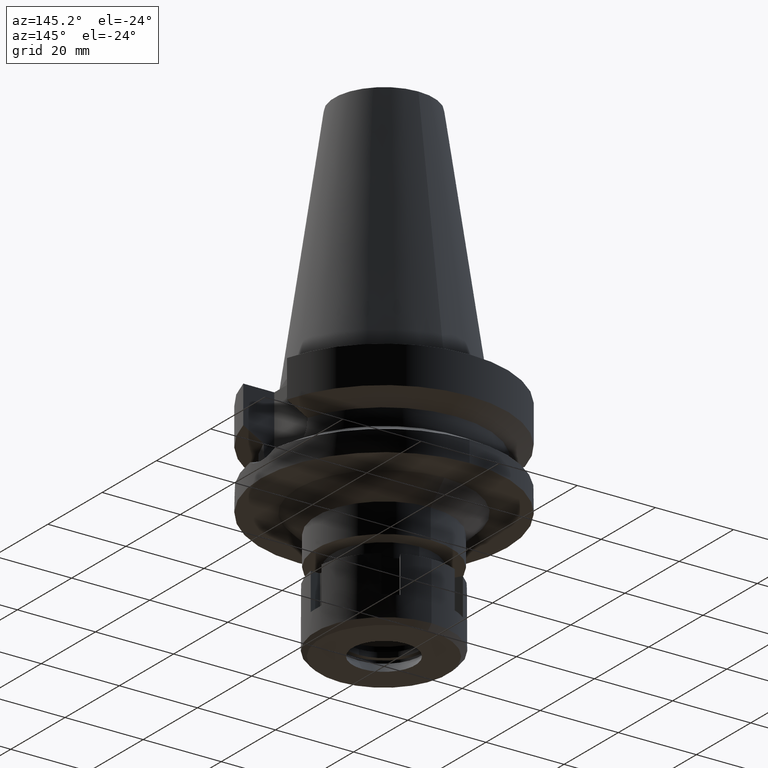
[diagram: clean part render]
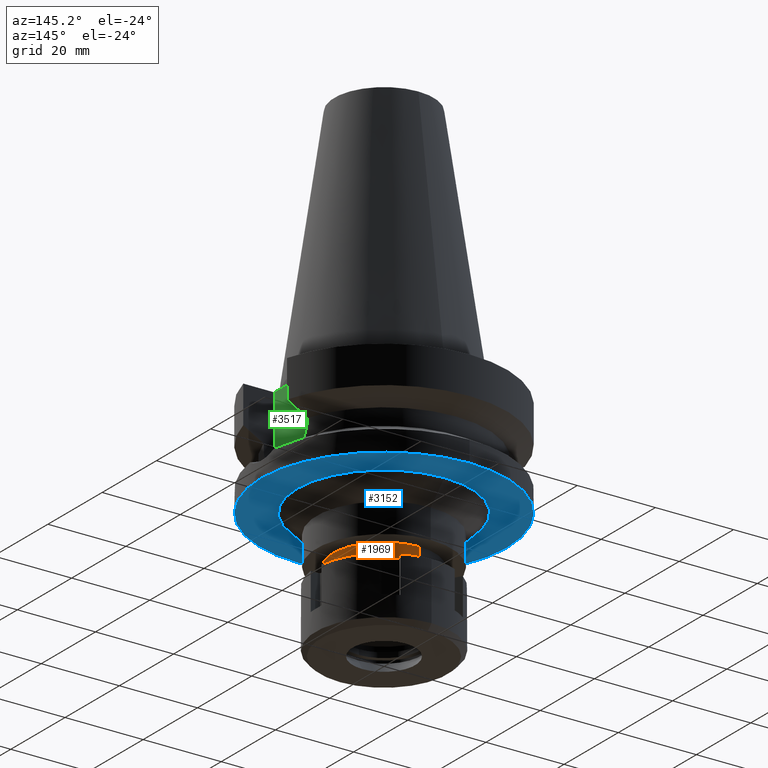
[diagram: same view with three faces highlighted in distinct colors, each labeled with its STEP entity id]
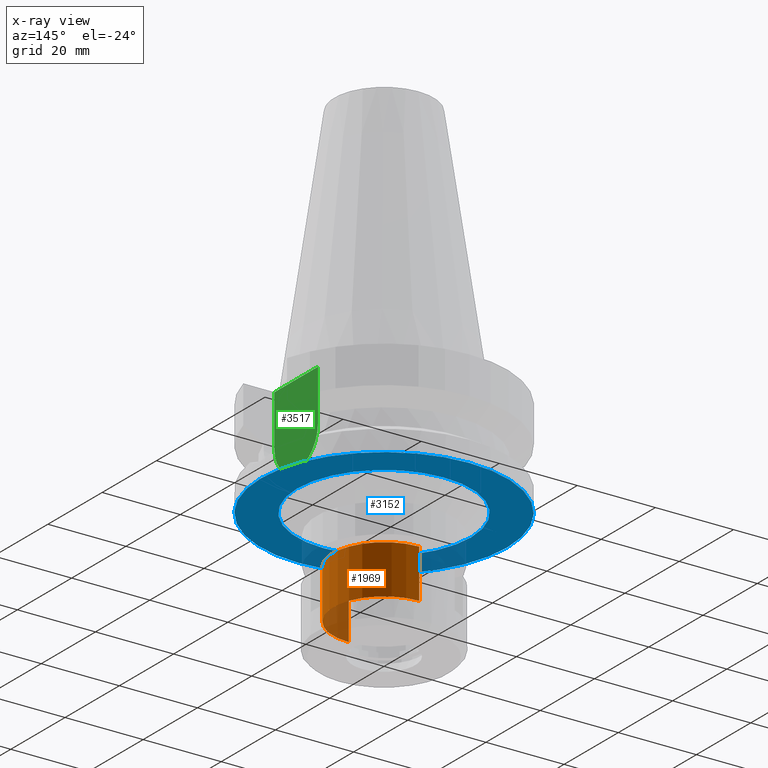
[diagram: x-ray of the same camera — body ghosted, the three highlighted faces saturated]
A machine part, auxiliary view with three faces highlighted in distinct colors.
The next image is the same camera in x-ray (body ghosted, the three faces saturated) — at least one of them is partly hidden behind the body in this view.
Their STEP definitions:

[orange] entity #1969 — the highlighted cylindrical surface (partial cylindrical patch) has radius 13 mm, axis along (0, 0, -1).
#209 = CARTESIAN_POINT ( 'NONE',  ( 0.0000000000000000000, -13.00000000000000000, -39.50000000000000000 ) ) ;
#297 = EDGE_LOOP ( 'NONE', ( #3236, #1081, #1932, #679 ) ) ;
#334 = CARTESIAN_POINT ( 'NONE',  ( 0.0000000000000000000, 2.097452572899999775E-14, -52.00000000000000000 ) ) ;
#444 = EDGE_CURVE ( 'NONE', #3170, #1881, #2715, .T. ) ;
#603 = DIRECTION ( 'NONE',  ( 0.0000000000000000000, 0.0000000000000000000, 1.000000000000000000 ) ) ;
#616 = CYLINDRICAL_SURFACE ( 'NONE', #1044, 13.00000000000000000 ) ;
#679 = ORIENTED_EDGE ( 'NONE', *, *, #1877, .F. ) ;
#754 = CIRCLE ( 'NONE', #1832, 13.00000000000000000 ) ;
#866 = CARTESIAN_POINT ( 'NONE',  ( 0.0000000000000000000, 2.097452572899999775E-14, 71.26999999999999602 ) ) ;
#925 = CARTESIAN_POINT ( 'NONE',  ( 0.0000000000000000000, 2.097452572899999775E-14, -39.50000000000000000 ) ) ;
#995 = CARTESIAN_POINT ( 'NONE',  ( 0.0000000000000000000, -13.00000000000000000, -39.50000000000000000 ) ) ;
#1044 = AXIS2_PLACEMENT_3D ( 'NONE', #866, #3105, #3347 ) ;
#1081 = ORIENTED_EDGE ( 'NONE', *, *, #444, .T. ) ;
#1088 = EDGE_CURVE ( 'NONE', #2445, #3170, #754, .T. ) ;
#1177 = DIRECTION ( 'NONE',  ( 0.0000000000000000000, 0.0000000000000000000, -1.000000000000000000 ) ) ;
#1327 = CARTESIAN_POINT ( 'NONE',  ( 0.0000000000000000000, -13.00000000000000000, -52.00000000000000000 ) ) ;
#1432 = CARTESIAN_POINT ( 'NONE',  ( 0.0000000000000000000, 13.00000000000000000, -39.50000000000000000 ) ) ;
#1502 = AXIS2_PLACEMENT_3D ( 'NONE', #334, #603, #3088 ) ;
#1820 = CARTESIAN_POINT ( 'NONE',  ( 0.0000000000000000000, 13.00000000000000000, -52.00000000000000000 ) ) ;
#1832 = AXIS2_PLACEMENT_3D ( 'NONE', #925, #1177, #2012 ) ;
#1857 = LINE ( 'NONE', #2444, #3044 ) ;
#1877 = EDGE_CURVE ( 'NONE', #2445, #2094, #1857, .T. ) ;
#1881 = VERTEX_POINT ( 'NONE', #1327 ) ;
#1932 = ORIENTED_EDGE ( 'NONE', *, *, #1991, .T. ) ;
#1969 = ADVANCED_FACE ( 'NONE', ( #3047 ), #616, .T. ) ;
#1991 = EDGE_CURVE ( 'NONE', #1881, #2094, #2112, .T. ) ;
#2012 = DIRECTION ( 'NONE',  ( 0.0000000000000000000, 1.000000000000000000, 0.0000000000000000000 ) ) ;
#2094 = VERTEX_POINT ( 'NONE', #1820 ) ;
#2112 = CIRCLE ( 'NONE', #1502, 13.00000000000000000 ) ;
#2119 = DIRECTION ( 'NONE',  ( 0.0000000000000000000, 0.0000000000000000000, -1.000000000000000000 ) ) ;
#2176 = VECTOR ( 'NONE', #2992, 1000.000000000000000 ) ;
#2444 = CARTESIAN_POINT ( 'NONE',  ( 0.0000000000000000000, 13.00000000000000000, -39.50000000000000000 ) ) ;
#2445 = VERTEX_POINT ( 'NONE', #1432 ) ;
#2715 = LINE ( 'NONE', #209, #2176 ) ;
#2992 = DIRECTION ( 'NONE',  ( 0.0000000000000000000, 0.0000000000000000000, -1.000000000000000000 ) ) ;
#3044 = VECTOR ( 'NONE', #2119, 1000.000000000000000 ) ;
#3047 = FACE_OUTER_BOUND ( 'NONE', #297, .T. ) ;
#3088 = DIRECTION ( 'NONE',  ( 0.0000000000000000000, -1.000000000000000000, 0.0000000000000000000 ) ) ;
#3105 = DIRECTION ( 'NONE',  ( 0.0000000000000000000, 0.0000000000000000000, -1.000000000000000000 ) ) ;
#3170 = VERTEX_POINT ( 'NONE', #995 ) ;
#3236 = ORIENTED_EDGE ( 'NONE', *, *, #1088, .T. ) ;
#3347 = DIRECTION ( 'NONE',  ( 0.0000000000000000000, -1.000000000000000000, 0.0000000000000000000 ) ) ;

[blue] entity #3152 — the highlighted planar face has unit normal (0, 0, -1).
#24 = ORIENTED_EDGE ( 'NONE', *, *, #1408, .F. ) ;
#301 = CARTESIAN_POINT ( 'NONE',  ( 0.0000000000000000000, 2.097452572899999775E-14, -27.00000000000000000 ) ) ;
#307 = AXIS2_PLACEMENT_3D ( 'NONE', #2813, #365, #3370 ) ;
#365 = DIRECTION ( 'NONE',  ( 0.0000000000000000000, 0.0000000000000000000, -1.000000000000000000 ) ) ;
#416 = ORIENTED_EDGE ( 'NONE', *, *, #2108, .F. ) ;
#448 = EDGE_LOOP ( 'NONE', ( #24, #1955 ) ) ;
#455 = CARTESIAN_POINT ( 'NONE',  ( 0.0000000000000000000, 31.50000000000000000, -27.00000000000000000 ) ) ;
#587 = CIRCLE ( 'NONE', #1154, 31.50000000000000000 ) ;
#638 = FACE_BOUND ( 'NONE', #3315, .T. ) ;
#641 = CIRCLE ( 'NONE', #870, 22.25000000000000000 ) ;
#672 = DIRECTION ( 'NONE',  ( 0.0000000000000000000, -1.000000000000000000, 0.0000000000000000000 ) ) ;
#715 = CARTESIAN_POINT ( 'NONE',  ( 0.0000000000000000000, 22.25000000000000000, -27.00000000000000000 ) ) ;
#778 = VERTEX_POINT ( 'NONE', #715 ) ;
#810 = DIRECTION ( 'NONE',  ( 0.0000000000000000000, 0.0000000000000000000, 1.000000000000000000 ) ) ;
#870 = AXIS2_PLACEMENT_3D ( 'NONE', #2006, #1993, #3385 ) ;
#1062 = ORIENTED_EDGE ( 'NONE', *, *, #1496, .F. ) ;
#1154 = AXIS2_PLACEMENT_3D ( 'NONE', #301, #810, #1412 ) ;
#1324 = AXIS2_PLACEMENT_3D ( 'NONE', #1440, #2556, #672 ) ;
#1408 = EDGE_CURVE ( 'NONE', #1711, #1540, #587, .T. ) ;
#1412 = DIRECTION ( 'NONE',  ( 0.0000000000000000000, 1.000000000000000000, 0.0000000000000000000 ) ) ;
#1440 = CARTESIAN_POINT ( 'NONE',  ( 0.0000000000000000000, 2.097452572899999775E-14, -27.00000000000000000 ) ) ;
#1485 = CARTESIAN_POINT ( 'NONE',  ( 0.0000000000000000000, -22.25000000000000000, -27.00000000000000000 ) ) ;
#1496 = EDGE_CURVE ( 'NONE', #2759, #778, #641, .T. ) ;
#1506 = CIRCLE ( 'NONE', #3501, 22.25000000000000000 ) ;
#1540 = VERTEX_POINT ( 'NONE', #1976 ) ;
#1597 = EDGE_CURVE ( 'NONE', #1540, #1711, #3327, .T. ) ;
#1711 = VERTEX_POINT ( 'NONE', #455 ) ;
#1721 = PLANE ( 'NONE',  #307 ) ;
#1955 = ORIENTED_EDGE ( 'NONE', *, *, #1597, .F. ) ;
#1976 = CARTESIAN_POINT ( 'NONE',  ( 0.0000000000000000000, -31.50000000000000000, -27.00000000000000000 ) ) ;
#1993 = DIRECTION ( 'NONE',  ( 0.0000000000000000000, 0.0000000000000000000, -1.000000000000000000 ) ) ;
#2006 = CARTESIAN_POINT ( 'NONE',  ( 0.0000000000000000000, 0.0000000000000000000, -27.00000000000000000 ) ) ;
#2098 = DIRECTION ( 'NONE',  ( 0.0000000000000000000, 1.000000000000000000, 0.0000000000000000000 ) ) ;
#2108 = EDGE_CURVE ( 'NONE', #778, #2759, #1506, .T. ) ;
#2556 = DIRECTION ( 'NONE',  ( 0.0000000000000000000, 0.0000000000000000000, 1.000000000000000000 ) ) ;
#2759 = VERTEX_POINT ( 'NONE', #1485 ) ;
#2813 = CARTESIAN_POINT ( 'NONE',  ( 0.0000000000000000000, 0.0000000000000000000, -27.00000000000000000 ) ) ;
#2861 = DIRECTION ( 'NONE',  ( 0.0000000000000000000, 0.0000000000000000000, -1.000000000000000000 ) ) ;
#3152 = ADVANCED_FACE ( 'NONE', ( #3354, #638 ), #1721, .T. ) ;
#3315 = EDGE_LOOP ( 'NONE', ( #416, #1062 ) ) ;
#3327 = CIRCLE ( 'NONE', #1324, 31.50000000000000000 ) ;
#3354 = FACE_OUTER_BOUND ( 'NONE', #448, .T. ) ;
#3370 = DIRECTION ( 'NONE',  ( 0.0000000000000000000, -1.000000000000000000, 0.0000000000000000000 ) ) ;
#3385 = DIRECTION ( 'NONE',  ( 0.0000000000000000000, -1.000000000000000000, 0.0000000000000000000 ) ) ;
#3453 = CARTESIAN_POINT ( 'NONE',  ( 0.0000000000000000000, 0.0000000000000000000, -27.00000000000000000 ) ) ;
#3501 = AXIS2_PLACEMENT_3D ( 'NONE', #3453, #2861, #2098 ) ;

[green] entity #3517 — the highlighted planar face has unit normal (1, 0, 0).
#66 = EDGE_CURVE ( 'NONE', #1671, #2549, #478, .T. ) ;
#186 = ORIENTED_EDGE ( 'NONE', *, *, #554, .F. ) ;
#190 = VERTEX_POINT ( 'NONE', #2139 ) ;
#238 = PLANE ( 'NONE',  #835 ) ;
#278 = DIRECTION ( 'NONE',  ( 0.0000000000000000000, 1.000000000000000000, 0.0000000000000000000 ) ) ;
#316 = ORIENTED_EDGE ( 'NONE', *, *, #3252, .T. ) ;
#475 = LINE ( 'NONE', #1812, #2653 ) ;
#478 = CIRCLE ( 'NONE', #3564, 8.050000000000000711 ) ;
#517 = CARTESIAN_POINT ( 'NONE',  ( 22.50000000000000000, -8.050000000000000711, -2.000000000000000000 ) ) ;
#554 = EDGE_CURVE ( 'NONE', #2549, #2828, #1988, .T. ) ;
#682 = EDGE_CURVE ( 'NONE', #190, #1671, #1420, .T. ) ;
#793 = FACE_OUTER_BOUND ( 'NONE', #1167, .T. ) ;
#835 = AXIS2_PLACEMENT_3D ( 'NONE', #1348, #2998, #278 ) ;
#916 = DIRECTION ( 'NONE',  ( 0.0000000000000000000, 0.0000000000000000000, -1.000000000000000000 ) ) ;
#1167 = EDGE_LOOP ( 'NONE', ( #186, #3254, #1599, #316 ) ) ;
#1188 = CARTESIAN_POINT ( 'NONE',  ( 22.50000000000000000, 8.050000000000000711, -2.000000000000000000 ) ) ;
#1348 = CARTESIAN_POINT ( 'NONE',  ( 22.50000000000000000, 0.0000000000000000000, 0.0000000000000000000 ) ) ;
#1420 = LINE ( 'NONE', #1188, #3211 ) ;
#1481 = DIRECTION ( 'NONE',  ( -1.000000000000000000, 0.0000000000000000000, 0.0000000000000000000 ) ) ;
#1599 = ORIENTED_EDGE ( 'NONE', *, *, #682, .F. ) ;
#1664 = CARTESIAN_POINT ( 'NONE',  ( 22.50000000000000000, -8.050000000000000711, -14.94999999999999929 ) ) ;
#1671 = VERTEX_POINT ( 'NONE', #2386 ) ;
#1676 = VECTOR ( 'NONE', #1935, 1000.000000000000000 ) ;
#1812 = CARTESIAN_POINT ( 'NONE',  ( 22.50000000000000000, 8.050000000000000711, -2.000000000000000000 ) ) ;
#1935 = DIRECTION ( 'NONE',  ( 0.0000000000000000000, 0.0000000000000000000, 1.000000000000000000 ) ) ;
#1988 = LINE ( 'NONE', #1664, #1676 ) ;
#2139 = CARTESIAN_POINT ( 'NONE',  ( 22.50000000000000000, 8.050000000000000711, -2.000000000000000000 ) ) ;
#2323 = CARTESIAN_POINT ( 'NONE',  ( 22.50000000000000000, 0.0000000000000000000, -14.94999999999999929 ) ) ;
#2386 = CARTESIAN_POINT ( 'NONE',  ( 22.50000000000000000, 8.050000000000000711, -14.94999999999999929 ) ) ;
#2549 = VERTEX_POINT ( 'NONE', #3081 ) ;
#2653 = VECTOR ( 'NONE', #2906, 1000.000000000000000 ) ;
#2828 = VERTEX_POINT ( 'NONE', #517 ) ;
#2906 = DIRECTION ( 'NONE',  ( 0.0000000000000000000, -1.000000000000000000, 0.0000000000000000000 ) ) ;
#2998 = DIRECTION ( 'NONE',  ( 1.000000000000000000, 0.0000000000000000000, 0.0000000000000000000 ) ) ;
#3081 = CARTESIAN_POINT ( 'NONE',  ( 22.50000000000000000, -8.050000000000000711, -14.94999999999999929 ) ) ;
#3119 = DIRECTION ( 'NONE',  ( 0.0000000000000000000, 0.0000000000000000000, -1.000000000000000000 ) ) ;
#3211 = VECTOR ( 'NONE', #916, 1000.000000000000000 ) ;
#3252 = EDGE_CURVE ( 'NONE', #190, #2828, #475, .T. ) ;
#3254 = ORIENTED_EDGE ( 'NONE', *, *, #66, .F. ) ;
#3517 = ADVANCED_FACE ( 'NONE', ( #793 ), #238, .T. ) ;
#3564 = AXIS2_PLACEMENT_3D ( 'NONE', #2323, #1481, #3119 ) ;